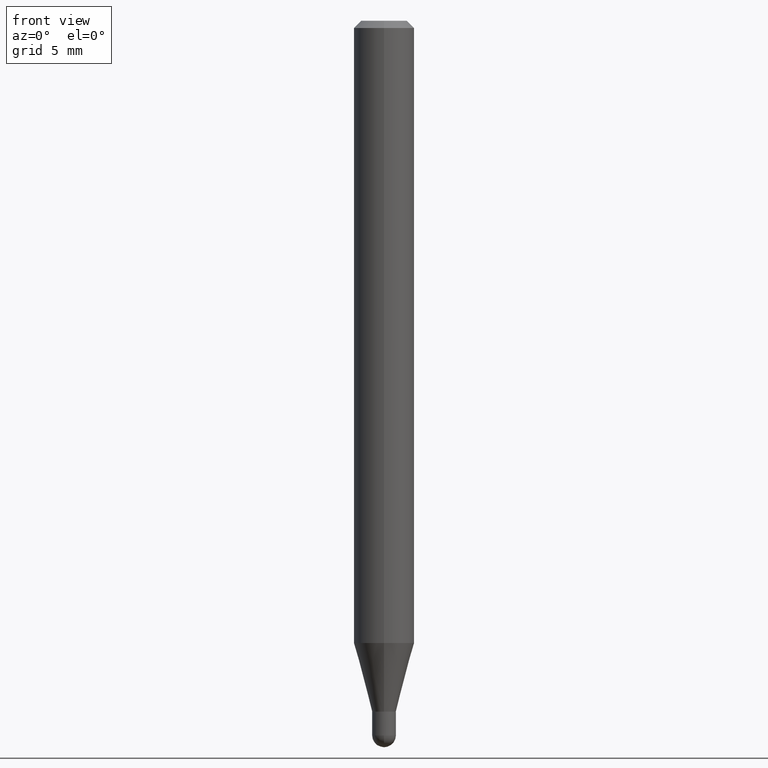
[diagram: clean part render]
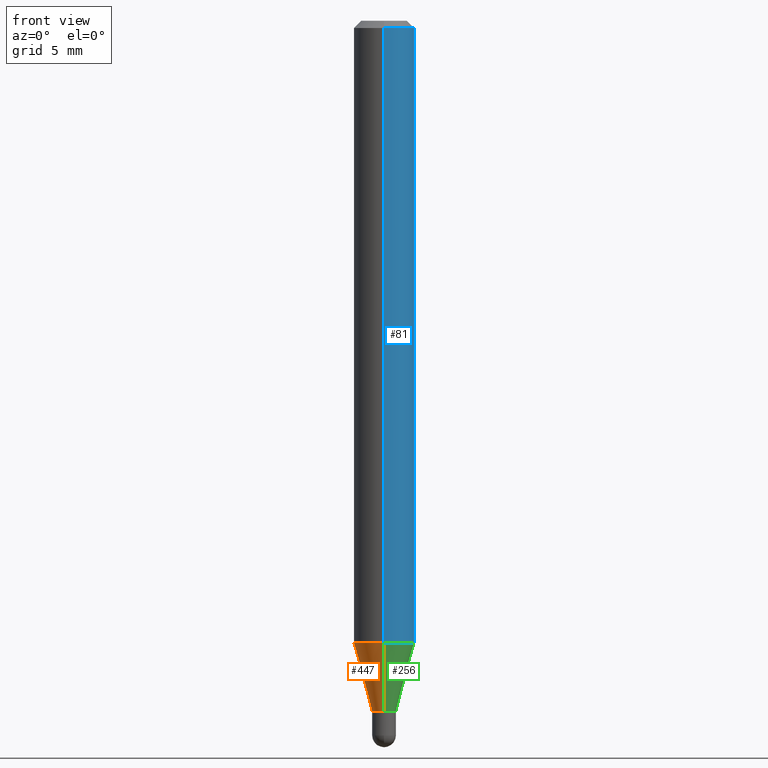
[diagram: same view with three faces highlighted in distinct colors, each labeled with its STEP entity id]
A machine part, front view with three faces highlighted in distinct colors.
Their STEP definitions:

[orange] entity #447 — the highlighted conical surface has half-angle 15 deg.
#10 = ORIENTED_EDGE ( 'NONE', *, *, #457, .T. ) ;
#27 = LINE ( 'NONE', #296, #385 ) ;
#34 = CIRCLE ( 'NONE', #378, 0.02449999999999992462 ) ;
#87 = EDGE_CURVE ( 'NONE', #287, #446, #186, .T. ) ;
#88 = CARTESIAN_POINT ( 'NONE',  ( 4.440892098500937762E-16, 0.06249999999999550360, -1.284682069312387709 ) ) ;
#116 = CARTESIAN_POINT ( 'NONE',  ( -1.710825856032780879E-16, -0.02450000000000490674, -1.426500000000000545 ) ) ;
#118 = FACE_OUTER_BOUND ( 'NONE', #428, .T. ) ;
#128 = ORIENTED_EDGE ( 'NONE', *, *, #87, .F. ) ;
#148 = CONICAL_SURFACE ( 'NONE', #356, 0.02449999999999992462, 0.2617993877991574014 ) ;
#155 = LINE ( 'NONE', #353, #442 ) ;
#171 = DIRECTION ( 'NONE',  ( -2.445465998314857821E-29, 3.491485359873199197E-15, 1.000000000000000000 ) ) ;
#173 = ORIENTED_EDGE ( 'NONE', *, *, #266, .F. ) ;
#176 = DIRECTION ( 'NONE',  ( -2.445465998314857821E-29, 3.491485359873199197E-15, 1.000000000000000000 ) ) ;
#186 = CIRCLE ( 'NONE', #505, 0.06250000000000000000 ) ;
#196 = CARTESIAN_POINT ( 'NONE',  ( -4.364351673553603615E-16, -0.06250000000000451028, -1.284682069312387043 ) ) ;
#202 = DIRECTION ( 'NONE',  ( -2.445465998314857821E-29, 3.491485359873199197E-15, 1.000000000000000000 ) ) ;
#206 = CARTESIAN_POINT ( 'NONE',  ( 3.141646319148214491E-29, -4.485448637095806796E-15, -1.284682069312387265 ) ) ;
#240 = EDGE_CURVE ( 'NONE', #489, #400, #34, .T. ) ;
#249 = DIRECTION ( 'NONE',  ( 1.839019923739649225E-15, 0.2588190451025318417, 0.9659258262890653146 ) ) ;
#250 = ORIENTED_EDGE ( 'NONE', *, *, #240, .T. ) ;
#266 = EDGE_CURVE ( 'NONE', #489, #287, #155, .T. ) ;
#286 = DIRECTION ( 'NONE',  ( -6.982962677686265133E-15, -1.000000000000000000, 0.000000000000000000 ) ) ;
#287 = VERTEX_POINT ( 'NONE', #88 ) ;
#296 = CARTESIAN_POINT ( 'NONE',  ( -1.710825856032780879E-16, -0.02450000000000490674, -1.426500000000000545 ) ) ;
#299 = CARTESIAN_POINT ( 'NONE',  ( 3.488457246596145511E-29, -4.980603865859119824E-15, -1.426500000000000545 ) ) ;
#339 = DIRECTION ( 'NONE',  ( -1.807323732225378260E-15, -0.2588190451025250693, 0.9659258262890670910 ) ) ;
#347 = CARTESIAN_POINT ( 'NONE',  ( 3.488457246596145511E-29, -4.980603865859119824E-15, -1.426500000000000545 ) ) ;
#353 = CARTESIAN_POINT ( 'NONE',  ( 1.740829702612588430E-16, 0.02449999999999494249, -1.426500000000000545 ) ) ;
#356 = AXIS2_PLACEMENT_3D ( 'NONE', #347, #202, #376 ) ;
#376 = DIRECTION ( 'NONE',  ( -6.982962677686265133E-15, -1.000000000000000000, 0.000000000000000000 ) ) ;
#378 = AXIS2_PLACEMENT_3D ( 'NONE', #299, #176, #286 ) ;
#385 = VECTOR ( 'NONE', #339, 39.37007874015748854 ) ;
#400 = VERTEX_POINT ( 'NONE', #116 ) ;
#404 = DIRECTION ( 'NONE',  ( -6.982962677686265922E-15, -1.000000000000000000, 4.370956789862821150E-15 ) ) ;
#428 = EDGE_LOOP ( 'NONE', ( #173, #250, #10, #128 ) ) ;
#429 = CARTESIAN_POINT ( 'NONE',  ( 3.090860900556765438E-16, 0.02449999999999494596, -1.426500000000000545 ) ) ;
#442 = VECTOR ( 'NONE', #249, 39.37007874015748143 ) ;
#446 = VERTEX_POINT ( 'NONE', #196 ) ;
#447 = ADVANCED_FACE ( 'NONE', ( #118 ), #148, .T. ) ;
#457 = EDGE_CURVE ( 'NONE', #400, #446, #27, .T. ) ;
#489 = VERTEX_POINT ( 'NONE', #429 ) ;
#505 = AXIS2_PLACEMENT_3D ( 'NONE', #206, #171, #404 ) ;

[blue] entity #81 — the highlighted cylindrical surface (edge-blend (fillet) strip) has radius 1.5875 mm, axis along (-0, 0, 1).
#9 = DIRECTION ( 'NONE',  ( -6.982962677686265922E-15, -1.000000000000000000, 3.491485359873198803E-15 ) ) ;
#11 = EDGE_LOOP ( 'NONE', ( #239, #449, #362, #458 ) ) ;
#25 = EDGE_CURVE ( 'NONE', #481, #93, #288, .T. ) ;
#30 = EDGE_CURVE ( 'NONE', #446, #481, #269, .T. ) ;
#36 = EDGE_CURVE ( 'NONE', #446, #287, #279, .T. ) ;
#44 = DIRECTION ( 'NONE',  ( -2.445465998314857821E-29, 3.491485359873199197E-15, 1.000000000000000000 ) ) ;
#60 = AXIS2_PLACEMENT_3D ( 'NONE', #169, #445, #361 ) ;
#81 = ADVANCED_FACE ( 'NONE', ( #125 ), #273, .T. ) ;
#88 = CARTESIAN_POINT ( 'NONE',  ( 4.440892098500937762E-16, 0.06249999999999550360, -1.284682069312387709 ) ) ;
#93 = VERTEX_POINT ( 'NONE', #420 ) ;
#98 = EDGE_CURVE ( 'NONE', #287, #93, #181, .T. ) ;
#113 = VECTOR ( 'NONE', #44, 39.37007874015748143 ) ;
#122 = AXIS2_PLACEMENT_3D ( 'NONE', #123, #275, #237 ) ;
#123 = CARTESIAN_POINT ( 'NONE',  ( 3.141646319148214491E-29, -4.485448637095806796E-15, -1.284682069312387265 ) ) ;
#125 = FACE_OUTER_BOUND ( 'NONE', #11, .T. ) ;
#169 = CARTESIAN_POINT ( 'NONE',  ( 3.668198997472288816E-31, -5.237228039809801828E-17, -0.01500000000000000812 ) ) ;
#181 = LINE ( 'NONE', #459, #386 ) ;
#196 = CARTESIAN_POINT ( 'NONE',  ( -4.364351673553603615E-16, -0.06250000000000451028, -1.284682069312387043 ) ) ;
#222 = DIRECTION ( 'NONE',  ( -2.445465998314857821E-29, 3.491485359873199197E-15, 1.000000000000000000 ) ) ;
#237 = DIRECTION ( 'NONE',  ( -6.982962677686265922E-15, -1.000000000000000000, 4.370956789862821150E-15 ) ) ;
#239 = ORIENTED_EDGE ( 'NONE', *, *, #36, .T. ) ;
#246 = CARTESIAN_POINT ( 'NONE',  ( -4.364351673553916201E-16, -0.06250000000000000000, 2.182178349920749252E-16 ) ) ;
#269 = LINE ( 'NONE', #246, #113 ) ;
#273 = CYLINDRICAL_SURFACE ( 'NONE', #367, 0.06250000000000000000 ) ;
#275 = DIRECTION ( 'NONE',  ( -2.445465998314857821E-29, 3.491485359873199197E-15, 1.000000000000000000 ) ) ;
#279 = CIRCLE ( 'NONE', #122, 0.06250000000000000000 ) ;
#287 = VERTEX_POINT ( 'NONE', #88 ) ;
#288 = CIRCLE ( 'NONE', #60, 0.06250000000000000000 ) ;
#361 = DIRECTION ( 'NONE',  ( -6.982962677686265922E-15, -1.000000000000000000, 3.483106191921935554E-15 ) ) ;
#362 = ORIENTED_EDGE ( 'NONE', *, *, #25, .F. ) ;
#367 = AXIS2_PLACEMENT_3D ( 'NONE', #439, #395, #9 ) ;
#386 = VECTOR ( 'NONE', #222, 39.37007874015748143 ) ;
#395 = DIRECTION ( 'NONE',  ( -2.445465998314857821E-29, 3.491485359873199197E-15, 1.000000000000000000 ) ) ;
#420 = CARTESIAN_POINT ( 'NONE',  ( 4.440892098500941706E-16, 0.06249999999999995143, -0.01500000000000022669 ) ) ;
#439 = CARTESIAN_POINT ( 'NONE',  ( 0.000000000000000000, 0.000000000000000000, 0.000000000000000000 ) ) ;
#445 = DIRECTION ( 'NONE',  ( -2.445465998314857821E-29, 3.491485359873199197E-15, 1.000000000000000000 ) ) ;
#446 = VERTEX_POINT ( 'NONE', #196 ) ;
#449 = ORIENTED_EDGE ( 'NONE', *, *, #98, .T. ) ;
#455 = CARTESIAN_POINT ( 'NONE',  ( -4.364351673553912750E-16, -0.06250000000000005551, -0.01499999999999979128 ) ) ;
#458 = ORIENTED_EDGE ( 'NONE', *, *, #30, .F. ) ;
#459 = CARTESIAN_POINT ( 'NONE',  ( 4.440892098500625669E-16, 0.06250000000000000000, -2.182178349920749252E-16 ) ) ;
#481 = VERTEX_POINT ( 'NONE', #455 ) ;

[green] entity #256 — the highlighted conical surface has half-angle 15 deg.
#6 = AXIS2_PLACEMENT_3D ( 'NONE', #372, #225, #383 ) ;
#27 = LINE ( 'NONE', #296, #385 ) ;
#36 = EDGE_CURVE ( 'NONE', #446, #287, #279, .T. ) ;
#61 = ORIENTED_EDGE ( 'NONE', *, *, #36, .F. ) ;
#80 = CIRCLE ( 'NONE', #482, 0.02449999999999992462 ) ;
#88 = CARTESIAN_POINT ( 'NONE',  ( 4.440892098500937762E-16, 0.06249999999999550360, -1.284682069312387709 ) ) ;
#103 = EDGE_LOOP ( 'NONE', ( #359, #402, #61, #389 ) ) ;
#116 = CARTESIAN_POINT ( 'NONE',  ( -1.710825856032780879E-16, -0.02450000000000490674, -1.426500000000000545 ) ) ;
#122 = AXIS2_PLACEMENT_3D ( 'NONE', #123, #275, #237 ) ;
#123 = CARTESIAN_POINT ( 'NONE',  ( 3.141646319148214491E-29, -4.485448637095806796E-15, -1.284682069312387265 ) ) ;
#155 = LINE ( 'NONE', #353, #442 ) ;
#196 = CARTESIAN_POINT ( 'NONE',  ( -4.364351673553603615E-16, -0.06250000000000451028, -1.284682069312387043 ) ) ;
#225 = DIRECTION ( 'NONE',  ( -2.445465998314857821E-29, 3.491485359873199197E-15, 1.000000000000000000 ) ) ;
#237 = DIRECTION ( 'NONE',  ( -6.982962677686265922E-15, -1.000000000000000000, 4.370956789862821150E-15 ) ) ;
#249 = DIRECTION ( 'NONE',  ( 1.839019923739649225E-15, 0.2588190451025318417, 0.9659258262890653146 ) ) ;
#256 = ADVANCED_FACE ( 'NONE', ( #450 ), #406, .T. ) ;
#262 = DIRECTION ( 'NONE',  ( -2.445465998314857821E-29, 3.491485359873199197E-15, 1.000000000000000000 ) ) ;
#266 = EDGE_CURVE ( 'NONE', #489, #287, #155, .T. ) ;
#275 = DIRECTION ( 'NONE',  ( -2.445465998314857821E-29, 3.491485359873199197E-15, 1.000000000000000000 ) ) ;
#279 = CIRCLE ( 'NONE', #122, 0.06250000000000000000 ) ;
#287 = VERTEX_POINT ( 'NONE', #88 ) ;
#296 = CARTESIAN_POINT ( 'NONE',  ( -1.710825856032780879E-16, -0.02450000000000490674, -1.426500000000000545 ) ) ;
#297 = CARTESIAN_POINT ( 'NONE',  ( 3.488457246596145511E-29, -4.980603865859119824E-15, -1.426500000000000545 ) ) ;
#333 = DIRECTION ( 'NONE',  ( -6.982962677686265133E-15, -1.000000000000000000, 0.000000000000000000 ) ) ;
#339 = DIRECTION ( 'NONE',  ( -1.807323732225378260E-15, -0.2588190451025250693, 0.9659258262890670910 ) ) ;
#353 = CARTESIAN_POINT ( 'NONE',  ( 1.740829702612588430E-16, 0.02449999999999494249, -1.426500000000000545 ) ) ;
#359 = ORIENTED_EDGE ( 'NONE', *, *, #394, .T. ) ;
#372 = CARTESIAN_POINT ( 'NONE',  ( 3.488457246596145511E-29, -4.980603865859119824E-15, -1.426500000000000545 ) ) ;
#383 = DIRECTION ( 'NONE',  ( -6.982962677686265133E-15, -1.000000000000000000, 0.000000000000000000 ) ) ;
#385 = VECTOR ( 'NONE', #339, 39.37007874015748854 ) ;
#389 = ORIENTED_EDGE ( 'NONE', *, *, #457, .F. ) ;
#394 = EDGE_CURVE ( 'NONE', #400, #489, #80, .T. ) ;
#400 = VERTEX_POINT ( 'NONE', #116 ) ;
#402 = ORIENTED_EDGE ( 'NONE', *, *, #266, .T. ) ;
#406 = CONICAL_SURFACE ( 'NONE', #6, 0.02449999999999992462, 0.2617993877991574014 ) ;
#429 = CARTESIAN_POINT ( 'NONE',  ( 3.090860900556765438E-16, 0.02449999999999494596, -1.426500000000000545 ) ) ;
#442 = VECTOR ( 'NONE', #249, 39.37007874015748143 ) ;
#446 = VERTEX_POINT ( 'NONE', #196 ) ;
#450 = FACE_OUTER_BOUND ( 'NONE', #103, .T. ) ;
#457 = EDGE_CURVE ( 'NONE', #400, #446, #27, .T. ) ;
#482 = AXIS2_PLACEMENT_3D ( 'NONE', #297, #262, #333 ) ;
#489 = VERTEX_POINT ( 'NONE', #429 ) ;